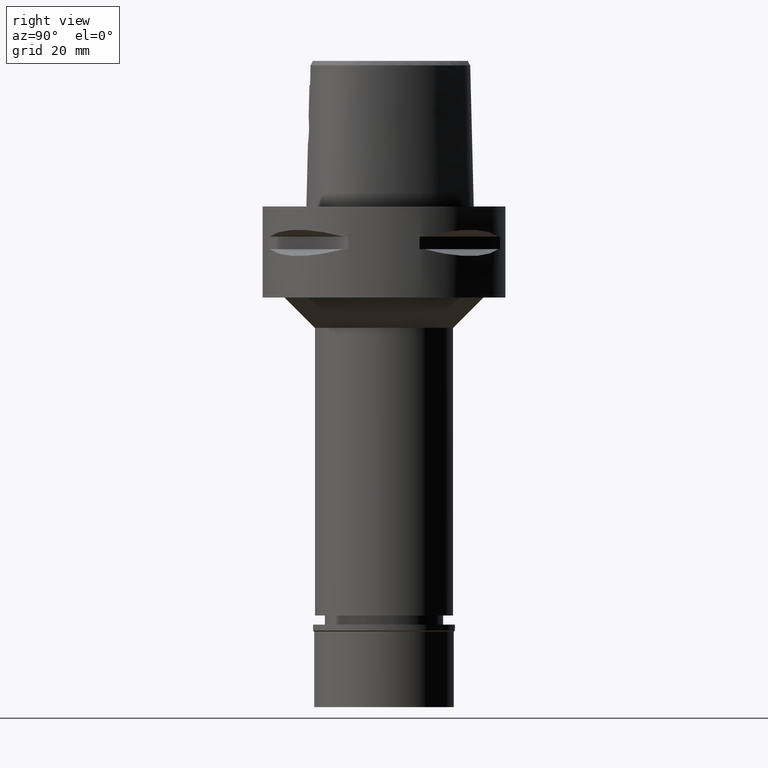
[diagram: clean part render]
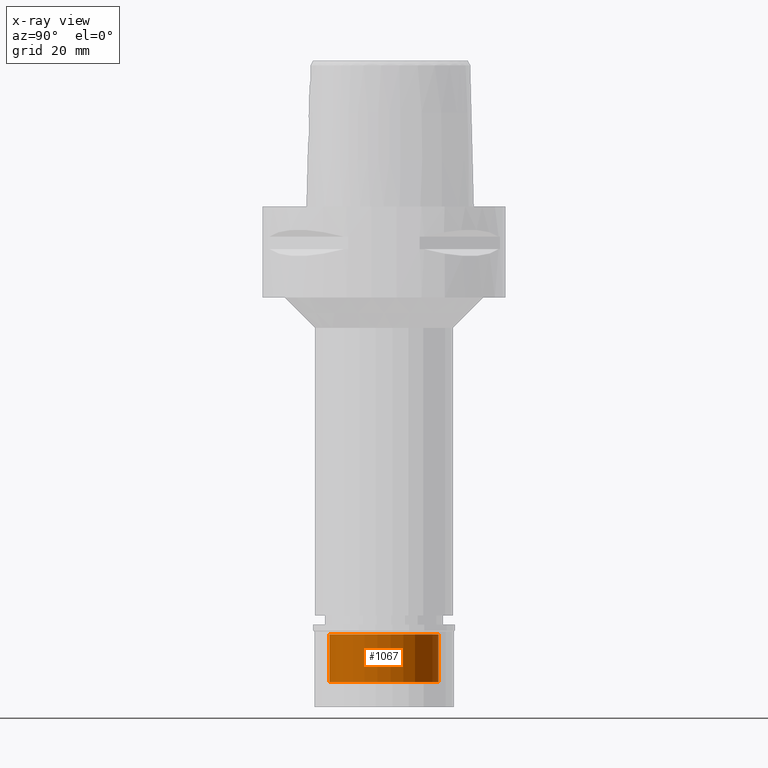
[diagram: x-ray — body ghosted, one internal face saturated and labeled with its STEP entity id]
A machine part, right view, then the same camera in x-ray: the body is ghosted and one INTERNAL B-rep face — a face not visible from any outside direction — is saturated and labeled: STEP entity #1067.
In plain terms, the highlighted cylindrical surface (partial cylindrical patch) has radius 18 mm, axis along (0, 0, -1).
Its self-contained STEP definition (entity closure, byte-faithful):
#40 = CARTESIAN_POINT ( 'NONE',  ( 0.0000000000000000000, 0.0000000000000000000, -19.00000000000000000 ) ) ;
#333 = ORIENTED_EDGE ( 'NONE', *, *, #4658, .T. ) ;
#476 = DIRECTION ( 'NONE',  ( 0.0000000000000000000, 0.0000000000000000000, -1.000000000000000000 ) ) ;
#545 = DIRECTION ( 'NONE',  ( 0.0000000000000000000, 0.0000000000000000000, 1.000000000000000000 ) ) ;
#642 = EDGE_CURVE ( 'NONE', #975, #789, #3973, .T. ) ;
#789 = VERTEX_POINT ( 'NONE', #3642 ) ;
#974 = VERTEX_POINT ( 'NONE', #4148 ) ;
#975 = VERTEX_POINT ( 'NONE', #3333 ) ;
#1067 = ADVANCED_FACE ( 'NONE', ( #3562 ), #4015, .F. ) ;
#1111 = EDGE_CURVE ( 'NONE', #974, #789, #2061, .T. ) ;
#1240 = DIRECTION ( 'NONE',  ( 0.0000000000000000000, -1.000000000000000000, 0.0000000000000000000 ) ) ;
#1254 = DIRECTION ( 'NONE',  ( 0.0000000000000000000, 0.0000000000000000000, -1.000000000000000000 ) ) ;
#1263 = CARTESIAN_POINT ( 'NONE',  ( 0.0000000000000000000, 0.0000000000000000000, -3.200000000000000178 ) ) ;
#1280 = DIRECTION ( 'NONE',  ( 0.0000000000000000000, -1.000000000000000000, 0.0000000000000000000 ) ) ;
#1422 = VERTEX_POINT ( 'NONE', #3771 ) ;
#1666 = CIRCLE ( 'NONE', #2389, 18.00000000000000000 ) ;
#1668 = CARTESIAN_POINT ( 'NONE',  ( 0.0000000000000000000, 18.00000000000000000, -19.00000000000000000 ) ) ;
#1674 = DIRECTION ( 'NONE',  ( 0.0000000000000000000, 0.0000000000000000000, 1.000000000000000000 ) ) ;
#1689 = VECTOR ( 'NONE', #5100, 1000.000000000000000 ) ;
#1850 = ORIENTED_EDGE ( 'NONE', *, *, #642, .T. ) ;
#2061 = LINE ( 'NONE', #1668, #1689 ) ;
#2229 = LINE ( 'NONE', #2991, #3803 ) ;
#2389 = AXIS2_PLACEMENT_3D ( 'NONE', #40, #1254, #2792 ) ;
#2397 = ORIENTED_EDGE ( 'NONE', *, *, #1111, .F. ) ;
#2664 = ORIENTED_EDGE ( 'NONE', *, *, #2976, .T. ) ;
#2792 = DIRECTION ( 'NONE',  ( 0.0000000000000000000, 1.000000000000000000, 0.0000000000000000000 ) ) ;
#2976 = EDGE_CURVE ( 'NONE', #1422, #975, #2229, .T. ) ;
#2991 = CARTESIAN_POINT ( 'NONE',  ( 0.0000000000000000000, -18.00000000000000000, -19.00000000000000000 ) ) ;
#3333 = CARTESIAN_POINT ( 'NONE',  ( 0.0000000000000000000, -18.00000000000000000, -3.200000000000000178 ) ) ;
#3562 = FACE_OUTER_BOUND ( 'NONE', #4001, .T. ) ;
#3642 = CARTESIAN_POINT ( 'NONE',  ( 0.0000000000000000000, 18.00000000000000000, -3.200000000000000178 ) ) ;
#3771 = CARTESIAN_POINT ( 'NONE',  ( 0.0000000000000000000, -18.00000000000000000, -19.00000000000000000 ) ) ;
#3803 = VECTOR ( 'NONE', #545, 1000.000000000000000 ) ;
#3973 = CIRCLE ( 'NONE', #4635, 18.00000000000000000 ) ;
#4001 = EDGE_LOOP ( 'NONE', ( #333, #2664, #1850, #2397 ) ) ;
#4015 = CYLINDRICAL_SURFACE ( 'NONE', #4640, 18.00000000000000000 ) ;
#4148 = CARTESIAN_POINT ( 'NONE',  ( 0.0000000000000000000, 18.00000000000000000, -19.00000000000000000 ) ) ;
#4635 = AXIS2_PLACEMENT_3D ( 'NONE', #1263, #1674, #1240 ) ;
#4640 = AXIS2_PLACEMENT_3D ( 'NONE', #4762, #476, #1280 ) ;
#4658 = EDGE_CURVE ( 'NONE', #974, #1422, #1666, .T. ) ;
#4762 = CARTESIAN_POINT ( 'NONE',  ( 0.0000000000000000000, 0.0000000000000000000, 0.0000000000000000000 ) ) ;
#5100 = DIRECTION ( 'NONE',  ( 0.0000000000000000000, 0.0000000000000000000, 1.000000000000000000 ) ) ;